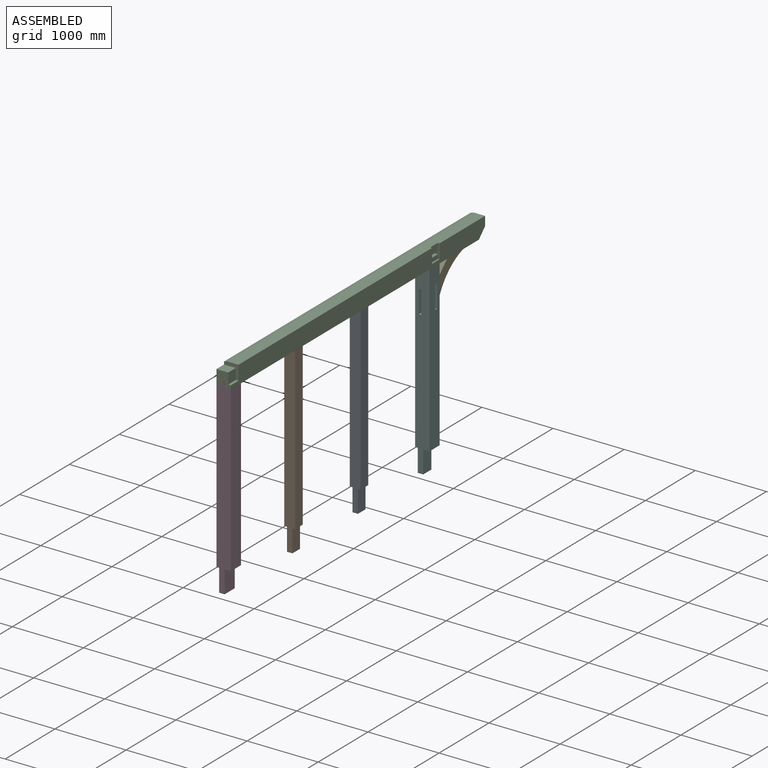
[diagram: assembled view]
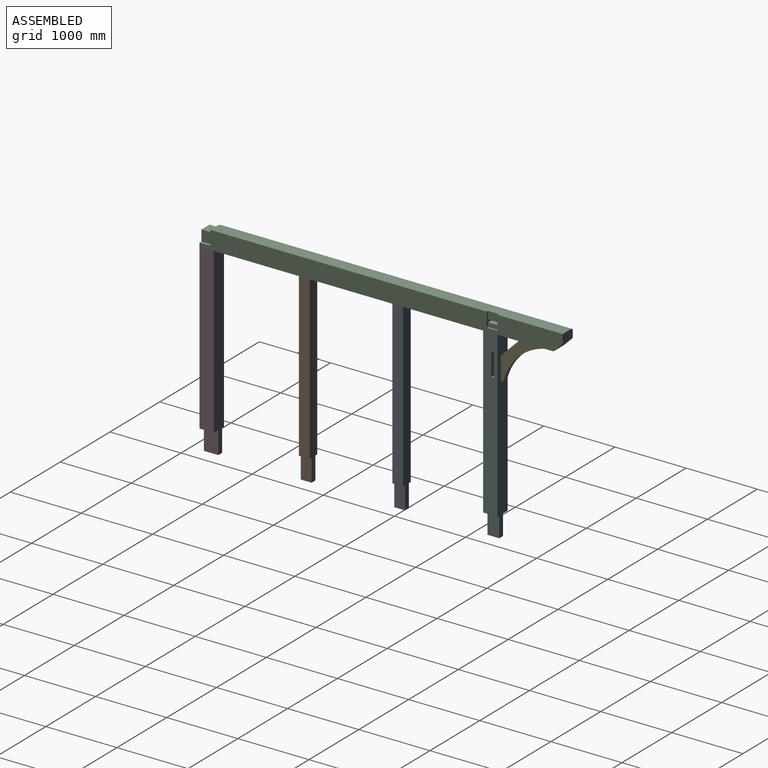
[diagram: assembled view, second angle]
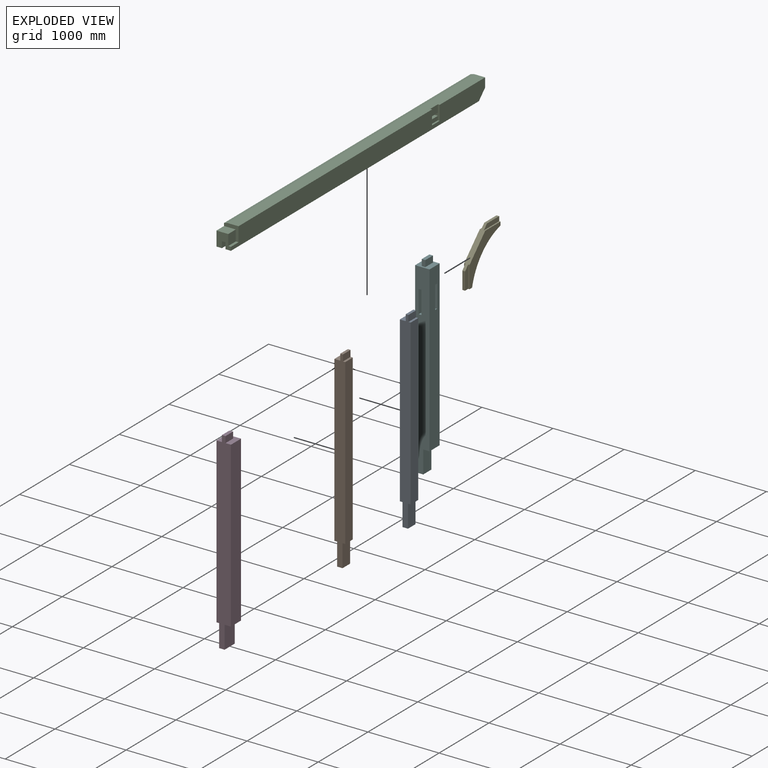
[diagram: exploded view]
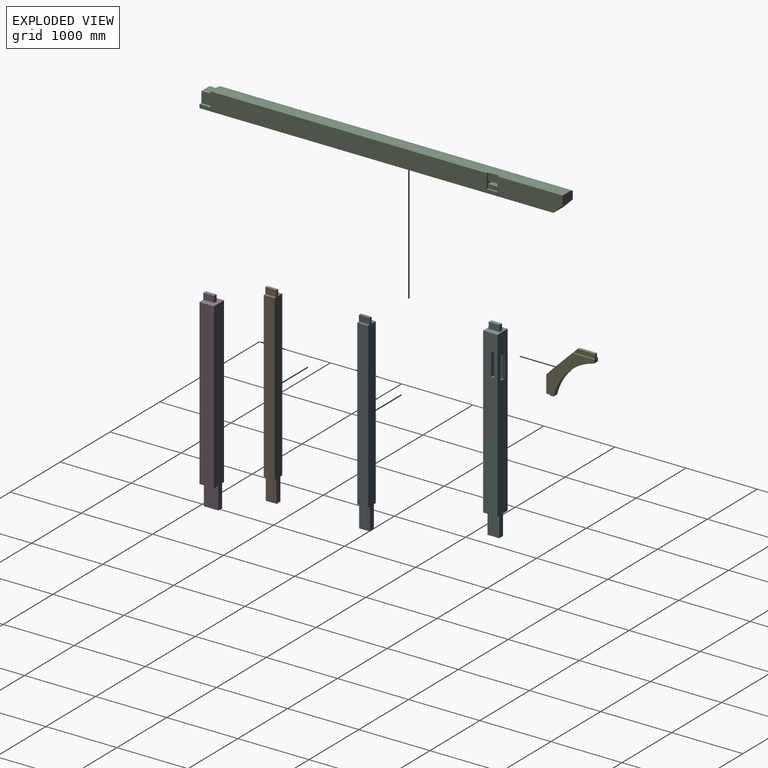
[diagram: exploded view, second angle]
ASSEMBLY  parts=6 mates=5
PART A: 14 faces, bbox 152.4x152.4x2717.8 mm
  f0: plane 152.4x38.1mm, normal (0,0,-1), area 5806.4mm2, adj f6,f9,f10,f11
  f1: plane 152.4x31.75mm, normal (0,0,1), area 4838.7mm2, adj f2,f8,f9,f10
  f2: plane 152.4x88.9mm, normal (1,0,0), area 13548.4mm2, adj f1,f3,f9,f10
  f3: plane 152.4x38.1mm, normal (0,0,1), area 5806.4mm2, adj f2,f4,f9,f10
  f4: plane 152.4x88.9mm, normal (-1,0,0), area 13548.4mm2, adj f3,f5,f9,f10
  f5: plane 152.4x82.55mm, normal (0,0,1), area 12580.6mm2, adj f4,f6,f9,f10
  f6: plane 2311.4x152.4mm, normal (-1,0,0), area 352257.4mm2, adj f0,f5,f9,f10
  f7: plane 152.4x38.1mm, normal (0,0,-1), area 5806.4mm2, adj f8,f9,f10,f12
  f8: plane 2311.4x152.4mm, normal (1,0,0), area 352257.4mm2, adj f1,f7,f9,f10
  f9: plane 2717.8x152.4mm, normal (0,-1,0), area 379837.9mm2, adj f0,f1,f2,f3,f4,f5,f6,f7
  f10: plane 2717.8x152.4mm, normal (0,1,0), area 379837.9mm2, adj f0,f1,f2,f3,f4,f5,f6,f7
  f11: plane 317.5x152.4mm, normal (-1,0,0), area 48387mm2, adj f0,f9,f10,f13
  f12: plane 317.5x152.4mm, normal (1,0,0), area 48387mm2, adj f7,f9,f10,f13
  f13: plane 152.4x76.2mm, normal (0,0,-1), area 11612.9mm2, adj f9,f10,f11,f12
PART B: same geometry as A
PART C: 57 faces, bbox 203.2x254x5105.4 mm
  f0: plane 4953x152.4mm, normal (0,1,0), area 750966.2mm2, adj f1,f3,f9,f40,f42,f50,f56
  f1: plane 203.2x203.2mm, normal (0,0,1), area 15806.4mm2, adj f0,f2,f3,f53,f54,f55,f56
  f2: plane 5105.4x241.3mm, normal (-1,0,0), area 1212255.6mm2, adj f1,f4,f5,f9,f39,f40,f41,f42
  f3: plane 5105.4x254mm, normal (1,0,0), area 1226771.7mm2, adj f0,f1,f4,f5,f9,f39,f40,f42
  f4: plane 203.2x203.2mm, normal (0,0,1), area 30967.7mm2, adj f2,f3,f5,f35,f37,f38,f53,f54
  f5: plane 4978.4x203.2mm, normal (0,-1,0), area 935577.5mm2, adj f2,f3,f4,f10,f11,f12,f13,f15
  f6: plane 308.41x63.5mm, normal (-1,0,0), area 19583.8mm2, adj f7,f44,f45,f46
  f7: plane 63.5x38.1mm, normal (0,0,-1), area 2419.3mm2, adj f6,f8,f45,f46
  f8: plane 308.41x63.5mm, normal (1,0,0), area 19583.8mm2, adj f7,f44,f45,f46
  f9: plane 203.2x127mm, normal (0,0,-1), area 25483.8mm2, adj f0,f2,f3,f39,f56
  f10: plane 321.11x88.9mm, normal (1,0,0), area 28546.4mm2, adj f5,f11,f13,f14
  f11: plane 88.9x38.1mm, normal (0,0,1), area 3387.1mm2, adj f5,f10,f12,f14
  f12: plane 321.11x88.9mm, normal (-1,0,0), area 28546.4mm2, adj f5,f11,f13,f14
  f13: plane 88.9x38.1mm, normal (0,0,-1), area 3387.1mm2, adj f5,f10,f12,f14
  f14: plane 321.11x38.1mm, normal (0,-1,0), area 12234.2mm2, adj f10,f11,f12,f13
  f15: plane 152.4x88.9mm, normal (1,0,0), area 13548.4mm2, adj f5,f16,f18,f19
  f16: plane 88.9x38.1mm, normal (0,0,1), area 3387.1mm2, adj f5,f15,f17,f19
  f17: plane 152.4x88.9mm, normal (-1,0,0), area 13548.4mm2, adj f5,f16,f18,f19
  f18: plane 88.9x38.1mm, normal (0,0,-1), area 3387.1mm2, adj f5,f15,f17,f19
  f19: plane 152.4x38.1mm, normal (0,-1,0), area 5806.4mm2, adj f15,f16,f17,f18
  f20: plane 152.4x88.9mm, normal (1,0,0), area 13548.4mm2, adj f5,f21,f23,f24
  f21: plane 88.9x38.1mm, normal (0,0,1), area 3387.1mm2, adj f5,f20,f22,f24
  f22: plane 152.4x88.9mm, normal (-1,0,0), area 13548.4mm2, adj f5,f21,f23,f24
  f23: plane 88.9x38.1mm, normal (0,0,-1), area 3387.1mm2, adj f5,f20,f22,f24
  f24: plane 152.4x38.1mm, normal (0,-1,0), area 5806.4mm2, adj f20,f21,f22,f23
  f25: plane 152.4x88.9mm, normal (1,0,0), area 13548.4mm2, adj f5,f26,f28,f29
  f26: plane 88.9x50.8mm, normal (0,0,1), area 4516.1mm2, adj f5,f25,f27,f29
  f27: plane 152.4x88.9mm, normal (-1,0,0), area 13548.4mm2, adj f5,f26,f28,f29
  f28: plane 88.9x50.8mm, normal (0,0,-1), area 4516.1mm2, adj f5,f25,f27,f29
  f29: plane 152.4x50.8mm, normal (0,-1,0), area 7741.9mm2, adj f25,f26,f27,f28
  f30: plane 321.11x88.9mm, normal (1,0,0), area 28546.4mm2, adj f5,f31,f33,f34
  f31: plane 88.9x38.1mm, normal (0,0,1), area 3387.1mm2, adj f5,f30,f32,f34
  f32: plane 321.11x88.9mm, normal (-1,0,0), area 28546.4mm2, adj f5,f31,f33,f34
  f33: plane 88.9x38.1mm, normal (0,0,-1), area 3387.1mm2, adj f5,f30,f32,f34
  f34: plane 321.11x38.1mm, normal (0,-1,0), area 12234.2mm2, adj f30,f31,f32,f33
  f35: plane 152.4x88.9mm, normal (1,0,0), area 13548.4mm2, adj f4,f5,f36,f38
  f36: plane 88.9x50.8mm, normal (0,0,1), area 4516.1mm2, adj f5,f35,f37,f38
  f37: plane 152.4x88.9mm, normal (-1,0,0), area 13548.4mm2, adj f4,f5,f36,f38
  f38: plane 152.4x50.8mm, normal (0,-1,0), area 7741.9mm2, adj f4,f35,f36,f37
  f39: plane 203.2x127mm, normal (0,-0.71,-0.71), area 36495.8mm2, adj f2,f3,f5,f9
  f40: plane 203.2x203.2mm, normal (0,0,1), area 11935.5mm2, adj f0,f2,f3,f41,f43,f50,f51,f52
  f41: plane 177.8x152.4mm, normal (0,-1,0), area 27096.7mm2, adj f2,f40,f42,f50
  f42: plane 203.2x203.2mm, normal (0,0,-1), area 11935.5mm2, adj f0,f2,f3,f41,f43,f50,f51,f52
  f43: plane 177.8x152.4mm, normal (0,1,0), area 27096.7mm2, adj f2,f40,f42,f52
  f44: plane 76.2x76.2mm, normal (0,0,1), area 3387.1mm2, adj f5,f6,f8,f45,f46,f47,f48
  f45: plane 308.41x38.1mm, normal (0,-1,0), area 11750.3mm2, adj f6,f7,f8,f44
  f46: plane 321.11x76.2mm, normal (0,-1,0), area 12718mm2, adj f6,f7,f8,f44,f47,f48,f49
  f47: plane 321.11x12.7mm, normal (1,0,0), area 4078.1mm2, adj f5,f44,f46,f49
  f48: plane 321.11x12.7mm, normal (-1,0,0), area 4078.1mm2, adj f5,f44,f46,f49
  f49: plane 76.2x12.7mm, normal (0,0,-1), area 967.7mm2, adj f5,f46,f47,f48
  f50: plane 152.4x107.95mm, normal (1,0,0), area 16451.6mm2, adj f0,f40,f41,f42
  f51: plane 152.4x25.4mm, normal (0,1,0), area 3871mm2, adj f3,f40,f42,f52
  f52: plane 152.4x57.15mm, normal (1,0,0), area 8709.7mm2, adj f40,f42,f43,f51
  f53: plane 152.4x38.1mm, normal (0,1,0), area 5806.4mm2, adj f1,f3,f4,f54
  f54: plane 152.4x152.4mm, normal (1,0,0), area 23225.8mm2, adj f1,f4,f53,f55
  f55: plane 165.1x152.4mm, normal (0,1,0), area 25161.2mm2, adj f1,f2,f4,f54
  f56: plane 4953x50.8mm, normal (-0.24,0.97,0), area 259356.1mm2, adj f0,f1,f2,f9
PART D: 14 faces, bbox 203.2x203.2x2717.8 mm
  f0: plane 152.4x88.9mm, normal (1,0,0), area 13548.4mm2, adj f1,f5,f9,f13
  f1: plane 152.4x50.8mm, normal (0,0,1), area 7741.9mm2, adj f0,f2,f9,f13
  f2: plane 152.4x88.9mm, normal (-1,0,0), area 13548.4mm2, adj f1,f5,f9,f13
  f3: plane 203.2x88.9mm, normal (0,0,-1), area 18064.5mm2, adj f6,f8,f9,f10
  f4: plane 2311.4x203.2mm, normal (1,0,0), area 469676.5mm2, adj f5,f7,f8,f9
  f5: plane 203.2x203.2mm, normal (0,0,1), area 33548.3mm2, adj f0,f2,f4,f6,f8,f9,f13
  f6: plane 2311.4x203.2mm, normal (-1,0,0), area 469676.5mm2, adj f3,f5,f8,f9
  f7: plane 203.2x38.1mm, normal (0,0,-1), area 7741.9mm2, adj f4,f8,f9,f11
  f8: plane 2628.9x203.2mm, normal (0,-1,0), area 493870mm2, adj f3,f4,f5,f6,f7,f10,f11,f12
  f9: plane 2717.8x203.2mm, normal (0,1,0), area 498386.1mm2, adj f0,f1,f2,f3,f4,f5,f6,f7
  f10: plane 317.5x203.2mm, normal (-1,0,0), area 64516mm2, adj f3,f8,f9,f12
  f11: plane 317.5x203.2mm, normal (1,0,0), area 64516mm2, adj f7,f8,f9,f12
  f12: plane 203.2x76.2mm, normal (0,0,-1), area 15483.8mm2, adj f8,f9,f10,f11
  f13: plane 88.9x50.8mm, normal (0,-1,0), area 4516.1mm2, adj f0,f1,f2,f5
PART E: 16 faces, bbox 254x76.2x969.9 mm
  f0: plane 218.08x218.08mm, normal (0.71,0,-0.71), area 5875.2mm2, adj f3,f5,f9,f15
  f1: plane 218.08x218.08mm, normal (0.71,0,0.71), area 5875.2mm2, adj f5,f7,f9,f12
  f2: cylinder r=771.52mm len=808.22mm, axis (0,1,0), area 64820.2mm2, adj f3,f7,f8,f9
  f3: plane 80.82x80.82mm, normal (-0.71,0,-0.71), area 6290.3mm2, adj f0,f2,f4,f8,f9,f13,f14,f15
  f4: plane 218.08x218.08mm, normal (0.71,0,-0.71), area 5875.2mm2, adj f3,f5,f8,f14
  f5: plane 623.51x76.2mm, normal (1,0,0), area 40668.4mm2, adj f0,f1,f4,f6,f8,f9,f10,f11
  f6: plane 218.08x218.08mm, normal (0.71,0,0.71), area 5875.2mm2, adj f5,f7,f8,f11
  f7: plane 80.82x80.82mm, normal (-0.71,0,0.71), area 6290.3mm2, adj f1,f2,f6,f8,f9,f10,f11,f12
  f8: plane 880.06x254mm, normal (0,-1,0), area 112126.2mm2, adj f2,f3,f4,f5,f6,f7
  f9: plane 880.06x254mm, normal (0,1,0), area 112126.2mm2, adj f0,f1,f2,f3,f5,f7
  f10: plane 173.18x173.18mm, normal (0.71,0,0.71), area 9331.1mm2, adj f5,f7,f11,f12
  f11: plane 262.98x218.08mm, normal (0,-1,0), area 17567.9mm2, adj f5,f6,f7,f10
  f12: plane 262.98x218.08mm, normal (0,1,0), area 17567.9mm2, adj f1,f5,f7,f10
  f13: plane 173.18x173.18mm, normal (0.71,0,-0.71), area 9331.1mm2, adj f3,f5,f14,f15
  f14: plane 262.98x218.08mm, normal (0,-1,0), area 17567.9mm2, adj f3,f4,f5,f13
  f15: plane 262.98x218.08mm, normal (0,1,0), area 17567.9mm2, adj f0,f3,f5,f13
PART F: 34 faces, bbox 203.2x203.2x2717.8 mm
  f0: plane 2628.9x203.2mm, normal (0,-1,0), area 481635.8mm2, adj f10,f11,f12,f13,f17,f19,f20,f29
  f1: plane 152.4x88.9mm, normal (1,0,0), area 13548.4mm2, adj f3,f11,f27,f28
  f2: plane 152.4x88.9mm, normal (-1,0,0), area 13548.4mm2, adj f3,f11,f27,f28
  f3: plane 152.4x50.8mm, normal (0,0,1), area 7741.9mm2, adj f1,f2,f27,f28
  f4: plane 308.41x63.5mm, normal (-1,0,0), area 13040.6mm2, adj f5,f8,f15,f21,f22,f23
  f5: plane 63.5x38.1mm, normal (0,0,-1), area 2258.1mm2, adj f4,f6,f8,f9,f21,f23
  f6: plane 308.41x63.5mm, normal (1,0,0), area 19583.8mm2, adj f5,f21,f22,f23
  f7: plane 2311.4x203.2mm, normal (0,1,0), area 445208.1mm2, adj f10,f11,f12,f13,f22,f24,f25,f26
  f8: plane 321.11x88.9mm, normal (0,-1,0), area 26910.6mm2, adj f4,f5,f9,f10,f15,f16
  f9: plane 321.11x38.1mm, normal (1,0,0), area 5691mm2, adj f5,f8,f14,f15,f16,f21
  f10: plane 2311.4x203.2mm, normal (1,0,0), area 457442.3mm2, adj f0,f7,f8,f11,f13,f14,f15,f16
  f11: plane 203.2x203.2mm, normal (0,0,1), area 33548.3mm2, adj f0,f1,f2,f7,f10,f12,f27,f28
  f12: plane 2311.4x203.2mm, normal (-1,0,0), area 469676.5mm2, adj f0,f7,f11,f13
  f13: plane 203.2x203.2mm, normal (0,0,-1), area 28709.6mm2, adj f0,f7,f10,f12,f17,f18,f19
  f14: plane 321.11x88.9mm, normal (0,1,0), area 28546.4mm2, adj f9,f10,f15,f16
  f15: plane 88.9x38.1mm, normal (0,0,1), area 3225.8mm2, adj f4,f8,f9,f10,f14,f21
  f16: plane 88.9x38.1mm, normal (0,0,-1), area 3387.1mm2, adj f8,f9,f10,f14
  f17: plane 317.5x165.1mm, normal (-1,0,0), area 52419.2mm2, adj f0,f13,f18,f20
  f18: plane 317.5x76.2mm, normal (0,1,0), area 24193.5mm2, adj f13,f17,f19,f20
  f19: plane 317.5x165.1mm, normal (1,0,0), area 52419.2mm2, adj f0,f13,f18,f20
  f20: plane 165.1x76.2mm, normal (0,0,-1), area 12580.6mm2, adj f0,f17,f18,f19
  f21: plane 308.41x38.1mm, normal (0,1,0), area 10114.5mm2, adj f4,f5,f6,f9,f15,f22
  f22: plane 76.2x76.2mm, normal (0,0,1), area 3387.1mm2, adj f4,f6,f7,f21,f23,f24,f25
  f23: plane 321.11x76.2mm, normal (0,1,0), area 12718mm2, adj f4,f5,f6,f22,f24,f25,f26
  f24: plane 321.11x12.7mm, normal (-1,0,0), area 4078.1mm2, adj f7,f22,f23,f26
  f25: plane 321.11x12.7mm, normal (1,0,0), area 4078.1mm2, adj f7,f22,f23,f26
  f26: plane 76.2x12.7mm, normal (0,0,-1), area 967.7mm2, adj f7,f23,f24,f25
  f27: plane 88.9x50.8mm, normal (0,-1,0), area 4516.1mm2, adj f1,f2,f3,f11
  f28: plane 88.9x50.8mm, normal (0,1,0), area 4516.1mm2, adj f1,f2,f3,f11
  f29: plane 88.9x38.1mm, normal (0,0,1), area 3387.1mm2, adj f0,f30,f32,f33
  f30: plane 321.11x88.9mm, normal (-1,0,0), area 28546.4mm2, adj f0,f29,f31,f33
  f31: plane 88.9x38.1mm, normal (0,0,-1), area 3387.1mm2, adj f0,f30,f32,f33
  f32: plane 321.11x88.9mm, normal (1,0,0), area 28546.4mm2, adj f0,f29,f31,f33
  f33: plane 321.11x38.1mm, normal (0,-1,0), area 12234.2mm2, adj f29,f30,f31,f32
PLACE A t=(82.09,-1441.15,1136.55)mm
PLACE B rot(axis=(-1,0,-0.08),0deg) t=(82.09,-2755.6,1136.55)mm
PLACE C rot(axis=(1,0,0),90deg) t=(107.49,-1641.17,2374.8)mm
PLACE D rot(axis=(0,0,-1),180deg) t=(107.49,-4092.27,1136.55)mm
PLACE E rot(axis=(-0.36,-0.36,-0.86),98.4deg) t=(107.49,132.72,1915.29)mm
PLACE F t=(107.49,-104.47,1136.55)mm fixed
MATE fastened E.f10 <-> C.f45  axis (0,0,1) through (107.49,484.28,2324)mm
MATE fastened D.f1 <-> C.f38  axis (0,0,1) through (107.49,-4117.67,2336.7)mm
MATE fastened C.f24 <-> A.f3  axis (0,0,-1) through (107.49,-1441.15,2336.7)mm
MATE fastened C.f19 <-> B.f3  axis (0,0,-1) through (107.49,-2755.6,2336.7)mm
MATE fastened C.f29 <-> F.f3  axis (0,0,-1) through (107.49,-104.47,2336.7)mm
